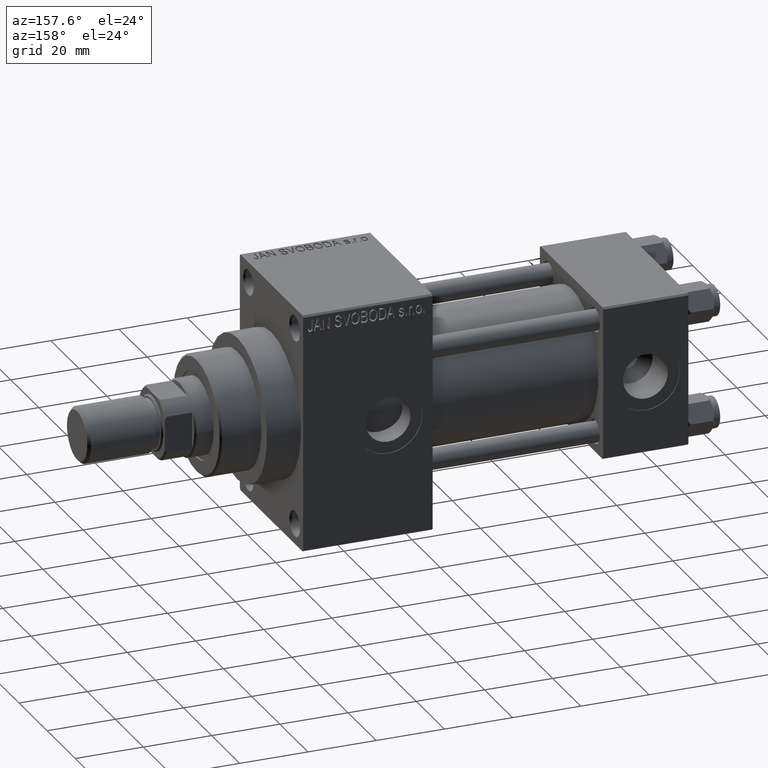
[diagram: clean part render]
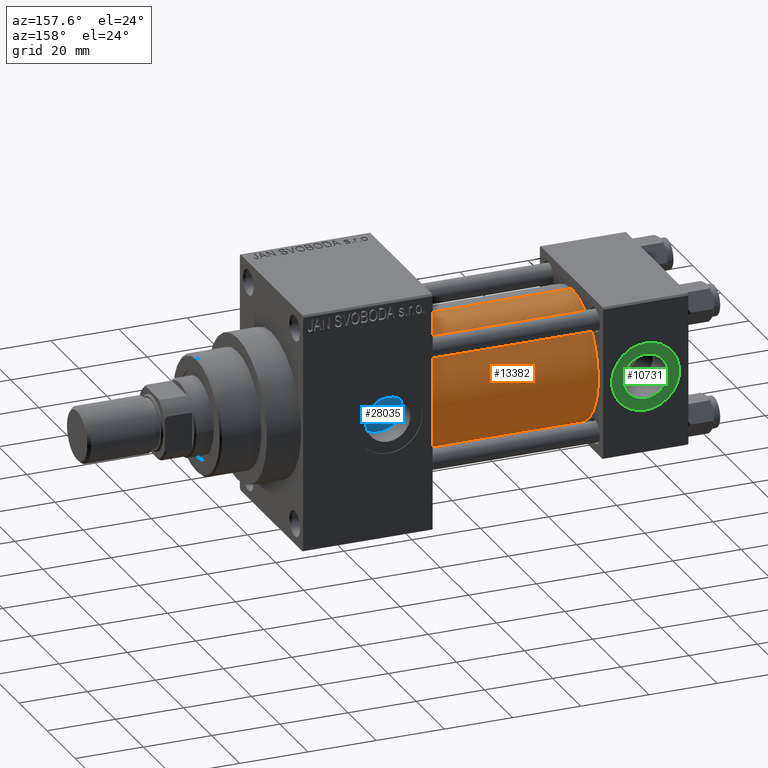
[diagram: same view with three faces highlighted in distinct colors, each labeled with its STEP entity id]
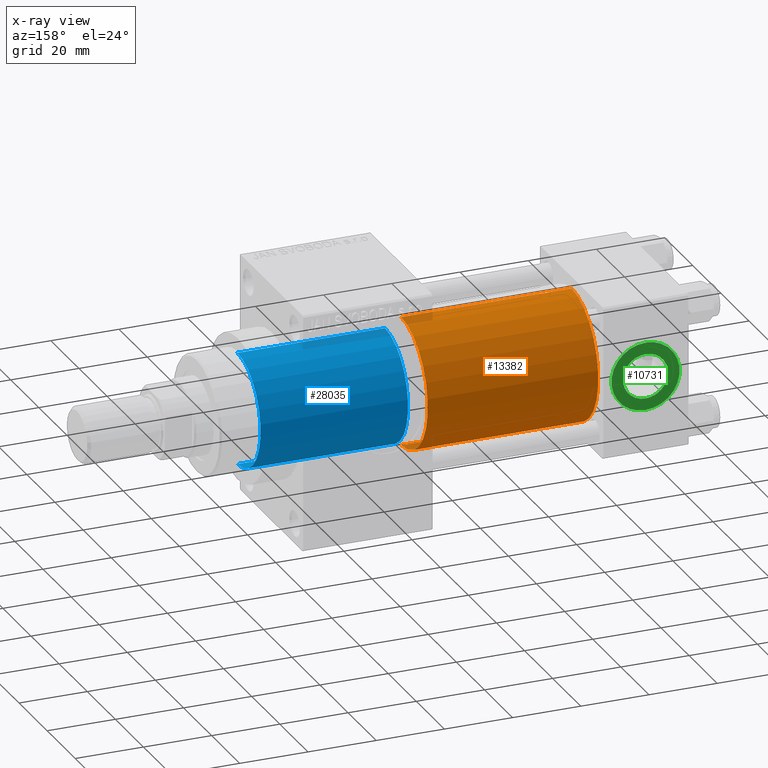
[diagram: x-ray of the same camera — body ghosted, the three highlighted faces saturated]
A machine part, auxiliary view with three faces highlighted in distinct colors.
The next image is the same camera in x-ray (body ghosted, the three faces saturated) — at least one of them is partly hidden behind the body in this view.
Their STEP definitions:

[orange] entity #13382 — the highlighted cylindrical surface (partial cylindrical patch) has radius 19 mm, axis along (-1, -0, -0).
#387 = EDGE_CURVE ( 'NONE', #16517, #40292, #17718, .T. ) ;
#4612 = ORIENTED_EDGE ( 'NONE', *, *, #19945, .F. ) ;
#5145 = CARTESIAN_POINT ( 'NONE',  ( 75.00000000000001421, -2.602085213965210642E-15, 0.000000000000000000 ) ) ;
#5543 = EDGE_CURVE ( 'NONE', #18862, #15447, #20937, .T. ) ;
#5806 = AXIS2_PLACEMENT_3D ( 'NONE', #17843, #43585, #10377 ) ;
#6055 = FACE_OUTER_BOUND ( 'NONE', #32613, .T. ) ;
#7094 = LINE ( 'NONE', #22496, #20164 ) ;
#8958 = DIRECTION ( 'NONE',  ( 1.000000000000000000, -0.000000000000000000, 0.000000000000000000 ) ) ;
#10037 = CARTESIAN_POINT ( 'NONE',  ( 75.00000000000001421, -2.752562955852396712E-16, -19.00000000000000000 ) ) ;
#10377 = DIRECTION ( 'NONE',  ( 0.000000000000000000, 0.000000000000000000, 1.000000000000000000 ) ) ;
#13382 = ADVANCED_FACE ( 'NONE', ( #6055 ), #35404, .T. ) ;
#15447 = VERTEX_POINT ( 'NONE', #39748 ) ;
#16517 = VERTEX_POINT ( 'NONE', #28655 ) ;
#17617 = CARTESIAN_POINT ( 'NONE',  ( 25.00000000000000000, -2.602085213965210642E-15, 19.00000000000000000 ) ) ;
#17718 = CIRCLE ( 'NONE', #46137, 19.00000000000000000 ) ;
#17843 = CARTESIAN_POINT ( 'NONE',  ( 75.00000000000001421, -2.602085213965210642E-15, 0.000000000000000000 ) ) ;
#17889 = AXIS2_PLACEMENT_3D ( 'NONE', #5145, #38352, #45095 ) ;
#18182 = DIRECTION ( 'NONE',  ( -1.000000000000000000, -0.000000000000000000, -0.000000000000000000 ) ) ;
#18716 = CARTESIAN_POINT ( 'NONE',  ( 75.00000000000001421, -2.752562955852396712E-16, -19.00000000000000000 ) ) ;
#18862 = VERTEX_POINT ( 'NONE', #10037 ) ;
#19718 = EDGE_CURVE ( 'NONE', #18862, #16517, #40822, .T. ) ;
#19945 = EDGE_CURVE ( 'NONE', #15447, #40292, #7094, .T. ) ;
#20164 = VECTOR ( 'NONE', #18182, 1000.000000000000000 ) ;
#20937 = CIRCLE ( 'NONE', #17889, 19.00000000000000000 ) ;
#22496 = CARTESIAN_POINT ( 'NONE',  ( 75.00000000000001421, -2.602085213965210642E-15, 19.00000000000000000 ) ) ;
#23171 = CARTESIAN_POINT ( 'NONE',  ( 25.00000000000000000, -2.602085213965210642E-15, 0.000000000000000000 ) ) ;
#23474 = ORIENTED_EDGE ( 'NONE', *, *, #5543, .F. ) ;
#27054 = VECTOR ( 'NONE', #46708, 1000.000000000000000 ) ;
#28655 = CARTESIAN_POINT ( 'NONE',  ( 25.00000000000000000, -2.752562955852396712E-16, -19.00000000000000000 ) ) ;
#31534 = ORIENTED_EDGE ( 'NONE', *, *, #19718, .T. ) ;
#32613 = EDGE_LOOP ( 'NONE', ( #23474, #31534, #43629, #4612 ) ) ;
#35404 = CYLINDRICAL_SURFACE ( 'NONE', #5806, 19.00000000000000000 ) ;
#38352 = DIRECTION ( 'NONE',  ( 1.000000000000000000, 0.000000000000000000, 0.000000000000000000 ) ) ;
#39748 = CARTESIAN_POINT ( 'NONE',  ( 75.00000000000001421, -2.602085213965210642E-15, 19.00000000000000000 ) ) ;
#40292 = VERTEX_POINT ( 'NONE', #17617 ) ;
#40822 = LINE ( 'NONE', #18716, #27054 ) ;
#42375 = DIRECTION ( 'NONE',  ( 0.000000000000000000, 0.000000000000000000, 1.000000000000000000 ) ) ;
#43585 = DIRECTION ( 'NONE',  ( -1.000000000000000000, -0.000000000000000000, -0.000000000000000000 ) ) ;
#43629 = ORIENTED_EDGE ( 'NONE', *, *, #387, .T. ) ;
#45095 = DIRECTION ( 'NONE',  ( 0.000000000000000000, 0.000000000000000000, -1.000000000000000000 ) ) ;
#46137 = AXIS2_PLACEMENT_3D ( 'NONE', #23171, #8958, #42375 ) ;
#46708 = DIRECTION ( 'NONE',  ( -1.000000000000000000, -0.000000000000000000, -0.000000000000000000 ) ) ;

[blue] entity #28035 — the highlighted cylindrical surface (partial cylindrical patch) has radius 16.5 mm, axis along (-1, 0, 0).
#3130 = DIRECTION ( 'NONE',  ( 0.000000000000000000, 0.000000000000000000, 1.000000000000000000 ) ) ;
#3322 = CIRCLE ( 'NONE', #26413, 16.50000000000000000 ) ;
#4271 = CARTESIAN_POINT ( 'NONE',  ( -16.50000000000000000, 0.000000000000000000, 43.25999999999999801 ) ) ;
#4339 = VECTOR ( 'NONE', #11488, 1000.000000000000000 ) ;
#4526 = LINE ( 'NONE', #26667, #11189 ) ;
#8306 = VERTEX_POINT ( 'NONE', #12603 ) ;
#8967 = CARTESIAN_POINT ( 'NONE',  ( 16.50000000000000000, 2.020667218593133100E-15, 0.000000000000000000 ) ) ;
#11189 = VECTOR ( 'NONE', #20574, 1000.000000000000000 ) ;
#11488 = DIRECTION ( 'NONE',  ( -0.000000000000000000, -0.000000000000000000, -1.000000000000000000 ) ) ;
#12603 = CARTESIAN_POINT ( 'NONE',  ( -16.50000000000000000, 0.000000000000000000, 0.000000000000000000 ) ) ;
#12950 = EDGE_CURVE ( 'NONE', #34868, #35468, #4526, .T. ) ;
#14930 = ORIENTED_EDGE ( 'NONE', *, *, #26973, .F. ) ;
#16386 = DIRECTION ( 'NONE',  ( 0.000000000000000000, 0.000000000000000000, 1.000000000000000000 ) ) ;
#17208 = AXIS2_PLACEMENT_3D ( 'NONE', #45920, #27633, #46380 ) ;
#19682 = VERTEX_POINT ( 'NONE', #24561 ) ;
#20574 = DIRECTION ( 'NONE',  ( -0.000000000000000000, -0.000000000000000000, -1.000000000000000000 ) ) ;
#21788 = EDGE_LOOP ( 'NONE', ( #28044, #14930, #43978, #43965 ) ) ;
#22885 = DIRECTION ( 'NONE',  ( 1.000000000000000000, 0.000000000000000000, 0.000000000000000000 ) ) ;
#24561 = CARTESIAN_POINT ( 'NONE',  ( -16.50000000000000000, 0.000000000000000000, 43.25999999999999801 ) ) ;
#24708 = CYLINDRICAL_SURFACE ( 'NONE', #17208, 16.50000000000000000 ) ;
#26413 = AXIS2_PLACEMENT_3D ( 'NONE', #41631, #16386, #22885 ) ;
#26667 = CARTESIAN_POINT ( 'NONE',  ( 16.50000000000000000, 2.020667218593133100E-15, 43.25999999999999801 ) ) ;
#26973 = EDGE_CURVE ( 'NONE', #19682, #34868, #3322, .T. ) ;
#27633 = DIRECTION ( 'NONE',  ( -0.000000000000000000, -0.000000000000000000, -1.000000000000000000 ) ) ;
#28035 = ADVANCED_FACE ( 'NONE', ( #46153 ), #24708, .T. ) ;
#28044 = ORIENTED_EDGE ( 'NONE', *, *, #12950, .F. ) ;
#28880 = CARTESIAN_POINT ( 'NONE',  ( 0.000000000000000000, 0.000000000000000000, 0.000000000000000000 ) ) ;
#29773 = LINE ( 'NONE', #4271, #4339 ) ;
#33725 = EDGE_CURVE ( 'NONE', #8306, #35468, #34285, .T. ) ;
#34285 = CIRCLE ( 'NONE', #35060, 16.50000000000000000 ) ;
#34868 = VERTEX_POINT ( 'NONE', #44188 ) ;
#35060 = AXIS2_PLACEMENT_3D ( 'NONE', #28880, #3130, #46465 ) ;
#35468 = VERTEX_POINT ( 'NONE', #8967 ) ;
#41631 = CARTESIAN_POINT ( 'NONE',  ( 0.000000000000000000, 0.000000000000000000, 43.25999999999999801 ) ) ;
#43199 = EDGE_CURVE ( 'NONE', #19682, #8306, #29773, .T. ) ;
#43965 = ORIENTED_EDGE ( 'NONE', *, *, #33725, .T. ) ;
#43978 = ORIENTED_EDGE ( 'NONE', *, *, #43199, .T. ) ;
#44188 = CARTESIAN_POINT ( 'NONE',  ( 16.50000000000000000, 2.020667218593133100E-15, 43.25999999999999801 ) ) ;
#45920 = CARTESIAN_POINT ( 'NONE',  ( 0.000000000000000000, 0.000000000000000000, 43.25999999999999801 ) ) ;
#46153 = FACE_OUTER_BOUND ( 'NONE', #21788, .T. ) ;
#46380 = DIRECTION ( 'NONE',  ( -1.000000000000000000, 0.000000000000000000, 0.000000000000000000 ) ) ;
#46465 = DIRECTION ( 'NONE',  ( 1.000000000000000000, 0.000000000000000000, 0.000000000000000000 ) ) ;

[green] entity #10731 — the highlighted planar face has unit normal (0, 1, 0).
#425 = DIRECTION ( 'NONE',  ( 0.000000000000000000, 1.000000000000000000, 0.000000000000000000 ) ) ;
#1245 = AXIS2_PLACEMENT_3D ( 'NONE', #32904, #425, #6916 ) ;
#2439 = EDGE_CURVE ( 'NONE', #34029, #15966, #15486, .T. ) ;
#2988 = DIRECTION ( 'NONE',  ( 0.000000000000000000, 0.000000000000000000, 1.000000000000000000 ) ) ;
#3508 = CARTESIAN_POINT ( 'NONE',  ( 12.50000000000000000, 22.30000000000000071, 9.999999999999996447 ) ) ;
#4921 = AXIS2_PLACEMENT_3D ( 'NONE', #35070, #16799, #27851 ) ;
#6916 = DIRECTION ( 'NONE',  ( 0.000000000000000000, 0.000000000000000000, 1.000000000000000000 ) ) ;
#10731 = ADVANCED_FACE ( 'NONE', ( #42402, #24133 ), #35414, .T. ) ;
#12472 = CARTESIAN_POINT ( 'NONE',  ( 12.50000000000000000, 22.30000000000000071, 0.000000000000000000 ) ) ;
#13431 = ORIENTED_EDGE ( 'NONE', *, *, #28039, .T. ) ;
#15486 = CIRCLE ( 'NONE', #42371, 6.579999999999998295 ) ;
#15966 = VERTEX_POINT ( 'NONE', #41329 ) ;
#16799 = DIRECTION ( 'NONE',  ( 0.000000000000000000, 1.000000000000000000, 0.000000000000000000 ) ) ;
#16894 = EDGE_LOOP ( 'NONE', ( #13431, #46014 ) ) ;
#17018 = VERTEX_POINT ( 'NONE', #28721 ) ;
#20523 = DIRECTION ( 'NONE',  ( 0.000000000000000000, -0.000000000000000000, 1.000000000000000000 ) ) ;
#21302 = EDGE_LOOP ( 'NONE', ( #46582, #35376 ) ) ;
#22843 = EDGE_CURVE ( 'NONE', #15966, #34029, #32509, .T. ) ;
#24133 = FACE_OUTER_BOUND ( 'NONE', #16894, .T. ) ;
#24312 = CIRCLE ( 'NONE', #1245, 9.999999999999996447 ) ;
#27159 = DIRECTION ( 'NONE',  ( 0.000000000000000000, 1.000000000000000000, 0.000000000000000000 ) ) ;
#27851 = DIRECTION ( 'NONE',  ( 0.000000000000000000, 0.000000000000000000, 1.000000000000000000 ) ) ;
#28039 = EDGE_CURVE ( 'NONE', #42669, #17018, #47201, .T. ) ;
#28721 = CARTESIAN_POINT ( 'NONE',  ( 12.50000000000000178, 22.30000000000000071, -9.999999999999996447 ) ) ;
#31622 = CARTESIAN_POINT ( 'NONE',  ( 12.50000000000000000, 22.30000000000000071, 0.000000000000000000 ) ) ;
#32509 = CIRCLE ( 'NONE', #47137, 6.579999999999998295 ) ;
#32904 = CARTESIAN_POINT ( 'NONE',  ( 12.50000000000000000, 22.30000000000000071, 0.000000000000000000 ) ) ;
#34029 = VERTEX_POINT ( 'NONE', #46641 ) ;
#34075 = EDGE_CURVE ( 'NONE', #17018, #42669, #24312, .T. ) ;
#35070 = CARTESIAN_POINT ( 'NONE',  ( 12.50000000000000000, 22.30000000000000071, 0.000000000000000000 ) ) ;
#35245 = DIRECTION ( 'NONE',  ( 0.000000000000000000, 1.000000000000000000, 0.000000000000000000 ) ) ;
#35376 = ORIENTED_EDGE ( 'NONE', *, *, #2439, .F. ) ;
#35414 = PLANE ( 'NONE',  #47258 ) ;
#38350 = DIRECTION ( 'NONE',  ( 0.000000000000000000, 1.000000000000000000, 0.000000000000000000 ) ) ;
#38808 = CARTESIAN_POINT ( 'NONE',  ( 12.50000000000000000, 22.30000000000000071, 0.000000000000000000 ) ) ;
#41329 = CARTESIAN_POINT ( 'NONE',  ( 12.50000000000000000, 22.30000000000000071, 6.579999999999998295 ) ) ;
#41823 = DIRECTION ( 'NONE',  ( 0.000000000000000000, 0.000000000000000000, 1.000000000000000000 ) ) ;
#42371 = AXIS2_PLACEMENT_3D ( 'NONE', #31622, #35245, #2988 ) ;
#42402 = FACE_BOUND ( 'NONE', #21302, .T. ) ;
#42669 = VERTEX_POINT ( 'NONE', #3508 ) ;
#46014 = ORIENTED_EDGE ( 'NONE', *, *, #34075, .T. ) ;
#46582 = ORIENTED_EDGE ( 'NONE', *, *, #22843, .F. ) ;
#46641 = CARTESIAN_POINT ( 'NONE',  ( 12.50000000000000000, 22.30000000000000071, -6.579999999999998295 ) ) ;
#47137 = AXIS2_PLACEMENT_3D ( 'NONE', #12472, #27159, #41823 ) ;
#47201 = CIRCLE ( 'NONE', #4921, 9.999999999999996447 ) ;
#47258 = AXIS2_PLACEMENT_3D ( 'NONE', #38808, #38350, #20523 ) ;